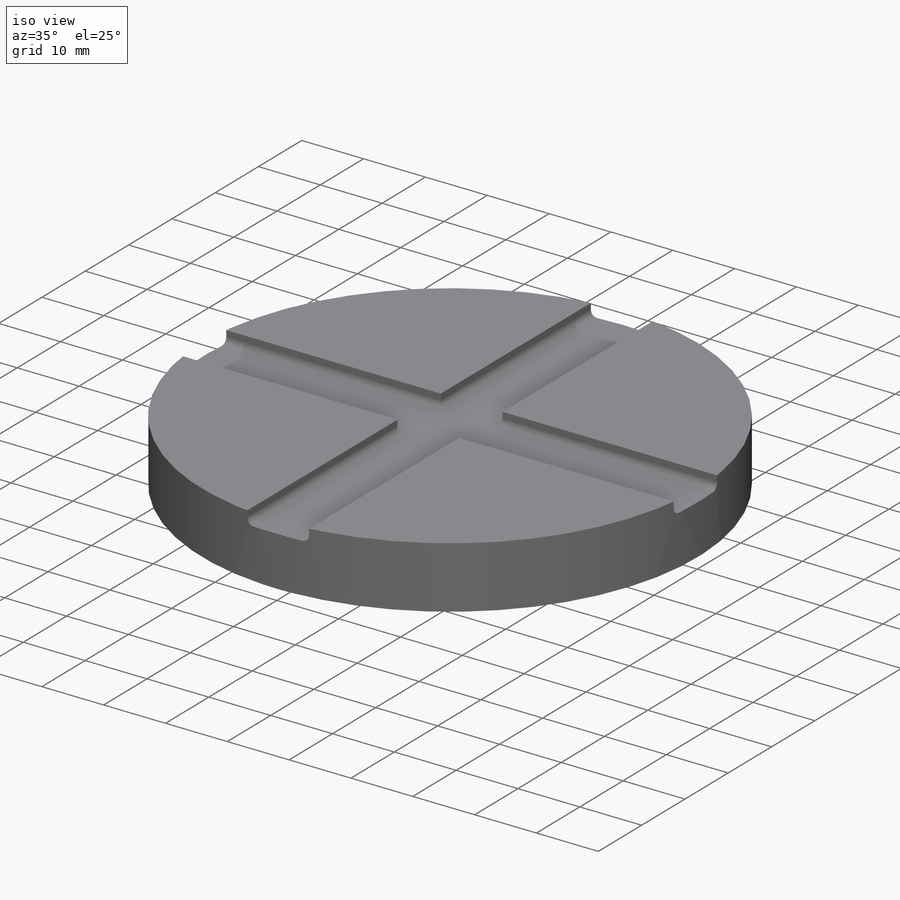
[diagram: iso view]
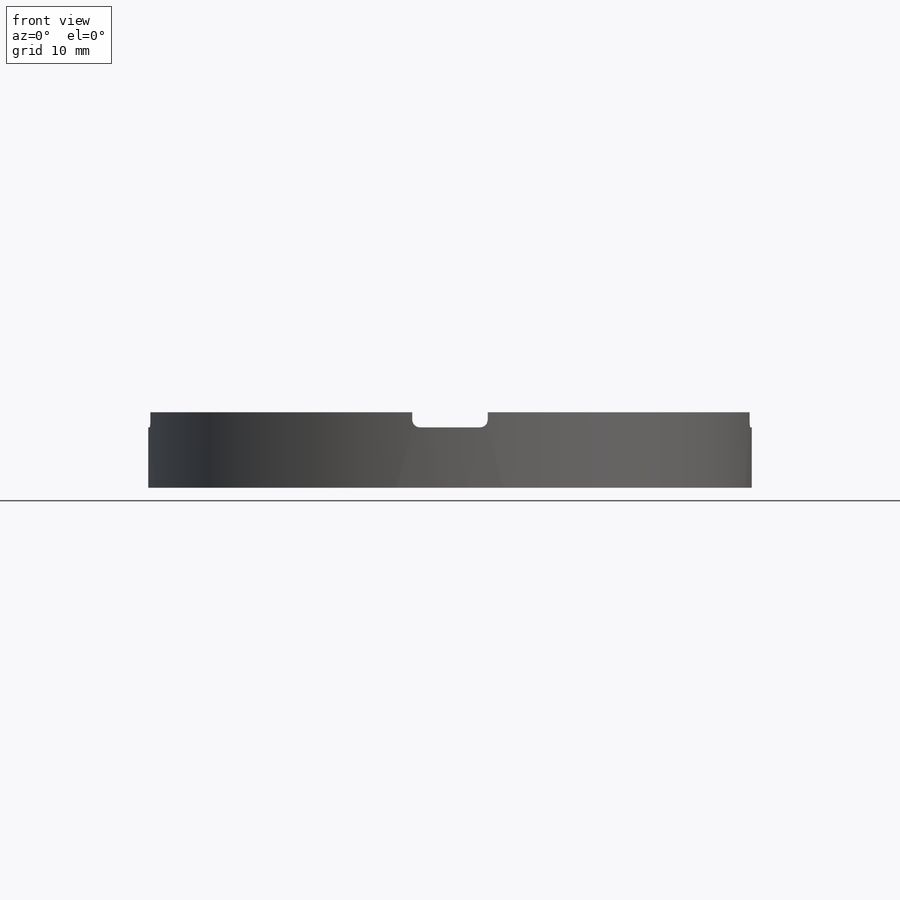
[diagram: front view]
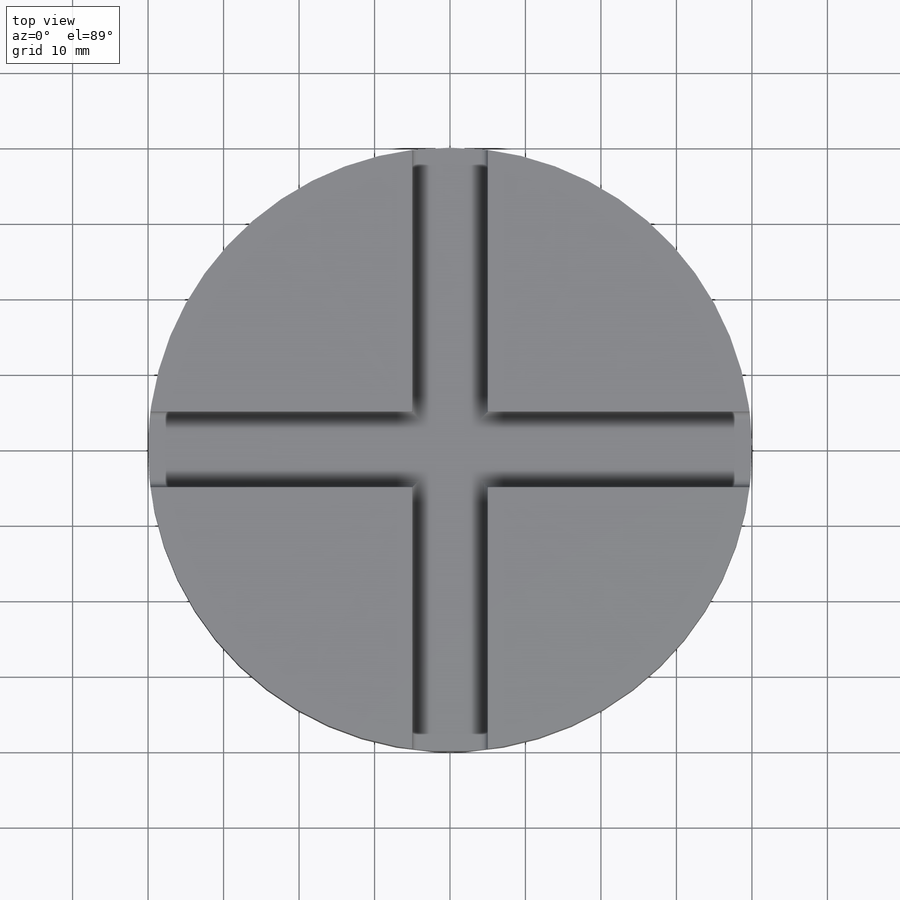
[diagram: top view]
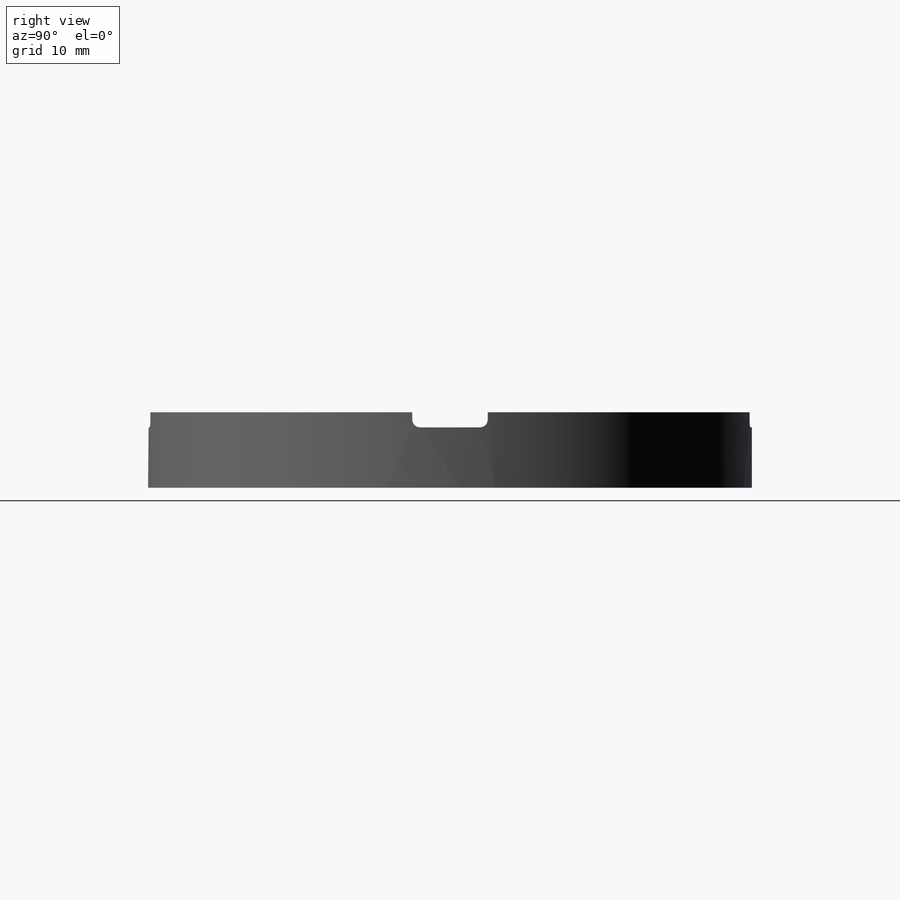
[diagram: right view]
SOLIDWORKS PART (.sldprt)
format: sldprt  version: not decoded by parser v0  size: 190,976 bytes
history: native  units: mm
features: sketch x2, material x1, extrude x1, cut_extrude x1, fillet x1 (+11 scaffold rows collapsed)
feature tree (17):
  scaffold x11  (default folders/planes/origin — collapsed)
  material  "Flywheel"
  sketch  "Sketch1"  dims[D1=~69.511079mm]
  extrude  "Boss-Extrude1"  Depth=10mm
  sketch  "Sketch7"  dims[c1.D1=5.0mm c1.D2=5.0mm c1.D3=40.0mm c2.D3=~75.003253deg c3.D3=5.0mm c3.D4=5.0mm c3.D5=10.0mm c3.D6=10.0mm c3.D7=10.0mm c3.D8=10.0mm c3.D9=~79.117248mm c4.D9=90.0deg c4.D10=11.0mm c5.D10=~274.596605deg c6.D10=5.0mm c6.D11=~11.407154mm c7.D11=90.0deg]
  cut_extrude  "Cut-Extrude2"  Depth=2mm
  fillet  "Fillet1"  Radius=1mm
decode coverage: 5 of 5 modeling features carry decoded parameters
note: ~ marks probable driven/reference dimensions
note: suppression state not decoded; provenance and decode notes live in map.json
